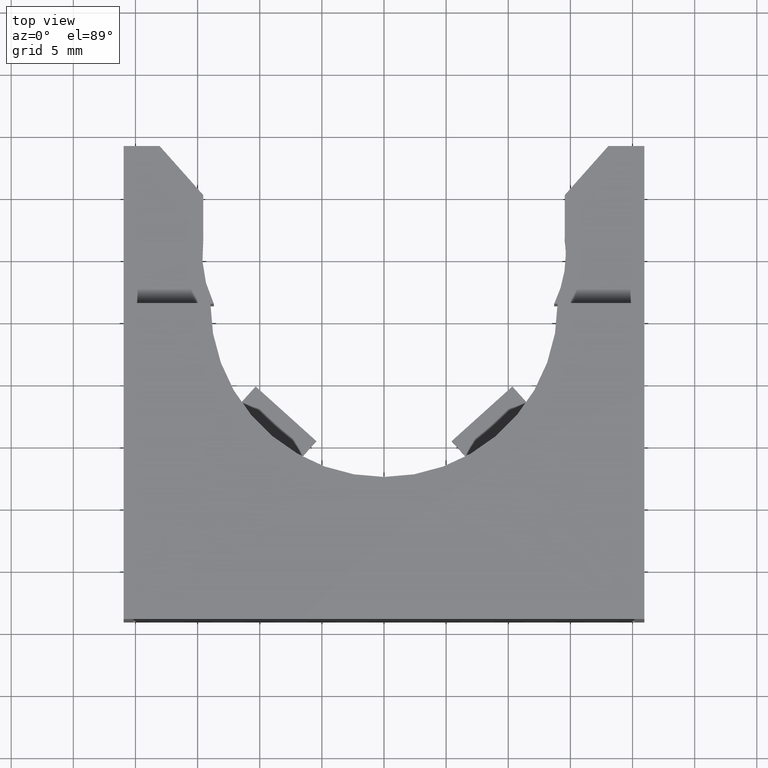
[diagram: clean part render]
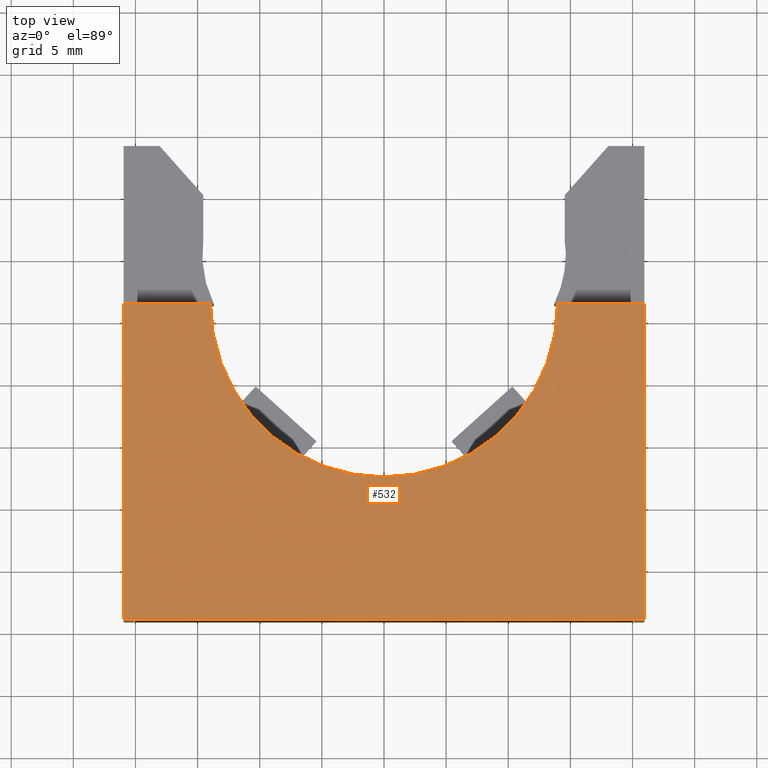
[diagram: same view with one face highlighted and labeled with its STEP entity id]
A machine part, top view. The second image highlights one B-rep face of the part: STEP entity #532.
In plain terms, the highlighted planar face has unit normal (-0, 0, 1).
Its self-contained STEP definition (entity closure, byte-faithful):
#208 = VERTEX_POINT ( 'NONE', #891 ) ;
#210 = EDGE_CURVE ( 'NONE', #211, #208, #890, .T. ) ;
#211 = VERTEX_POINT ( 'NONE', #886 ) ;
#459 = EDGE_CURVE ( 'NONE', #460, #461, #1232, .T. ) ;
#460 = VERTEX_POINT ( 'NONE', #1227 ) ;
#461 = VERTEX_POINT ( 'NONE', #1226 ) ;
#532 = ADVANCED_FACE ( 'NONE', ( #1457 ), #1500, .T. ) ;
#542 = VERTEX_POINT ( 'NONE', #1551 ) ;
#556 = EDGE_CURVE ( 'NONE', #568, #542, #1463, .T. ) ;
#568 = VERTEX_POINT ( 'NONE', #1509 ) ;
#575 = EDGE_LOOP ( 'NONE', ( #576, #578, #579, #580, #588, #590 ) ) ;
#576 = ORIENTED_EDGE ( 'NONE', *, *, #577, .F. ) ;
#577 = EDGE_CURVE ( 'NONE', #211, #460, #1443, .T. ) ;
#578 = ORIENTED_EDGE ( 'NONE', *, *, #210, .T. ) ;
#579 = ORIENTED_EDGE ( 'NONE', *, *, #620, .T. ) ;
#580 = ORIENTED_EDGE ( 'NONE', *, *, #556, .T. ) ;
#588 = ORIENTED_EDGE ( 'NONE', *, *, #589, .F. ) ;
#589 = EDGE_CURVE ( 'NONE', #461, #542, #1580, .T. ) ;
#590 = ORIENTED_EDGE ( 'NONE', *, *, #459, .F. ) ;
#620 = EDGE_CURVE ( 'NONE', #208, #568, #1486, .T. ) ;
#886 = CARTESIAN_POINT ( 'NONE',  ( -0.8250000000000004000, 0.2500000000000000000, 0.6300000000000000000 ) ) ;
#887 = DIRECTION ( 'NONE',  ( 1.821231995776175700E-016, -1.000000000000000000, 0.0000000000000000000 ) ) ;
#888 = VECTOR ( 'NONE', #887, 39.37007874015748100 ) ;
#889 = CARTESIAN_POINT ( 'NONE',  ( -0.8250000000000004000, 0.7499999999999998900, 0.6300000000000000000 ) ) ;
#890 = LINE ( 'NONE', #889, #888 ) ;
#891 = CARTESIAN_POINT ( 'NONE',  ( -0.8250000000000000700, -0.7500000000000002200, 0.6300000000000000000 ) ) ;
#1226 = CARTESIAN_POINT ( 'NONE',  ( 0.5500000000000001600, 0.2500000000000000000, 0.6300000000000000000 ) ) ;
#1227 = CARTESIAN_POINT ( 'NONE',  ( -0.5500000000000000400, 0.2500000000000000000, 0.6300000000000000000 ) ) ;
#1228 = DIRECTION ( 'NONE',  ( 1.000000000000000000, 0.0000000000000000000, 0.0000000000000000000 ) ) ;
#1229 = DIRECTION ( 'NONE',  ( 0.0000000000000000000, 0.0000000000000000000, 1.000000000000000000 ) ) ;
#1230 = CARTESIAN_POINT ( 'NONE',  ( 0.0000000000000000000, 0.2500000000000000600, 0.6300000000000000000 ) ) ;
#1231 = AXIS2_PLACEMENT_3D ( 'NONE', #1230, #1229, #1228 ) ;
#1232 = CIRCLE ( 'NONE', #1231, 0.5500000000000000400 ) ;
#1420 = DIRECTION ( 'NONE',  ( 1.000000000000000000, -0.0000000000000000000, -0.0000000000000000000 ) ) ;
#1441 = VECTOR ( 'NONE', #1420, 39.37007874015748100 ) ;
#1442 = CARTESIAN_POINT ( 'NONE',  ( -0.8250000000000004000, 0.2500000000000000000, 0.6300000000000000000 ) ) ;
#1443 = LINE ( 'NONE', #1442, #1441 ) ;
#1457 = FACE_OUTER_BOUND ( 'NONE', #575, .T. ) ;
#1460 = DIRECTION ( 'NONE',  ( -9.106159978880878600E-017, 1.000000000000000000, -0.0000000000000000000 ) ) ;
#1461 = VECTOR ( 'NONE', #1460, 39.37007874015748100 ) ;
#1462 = CARTESIAN_POINT ( 'NONE',  ( 0.8249999999999996200, 0.7499999999999998900, 0.6300000000000000000 ) ) ;
#1463 = LINE ( 'NONE', #1462, #1461 ) ;
#1483 = DIRECTION ( 'NONE',  ( 1.000000000000000000, 0.0000000000000000000, 0.0000000000000000000 ) ) ;
#1484 = VECTOR ( 'NONE', #1483, 39.37007874015748100 ) ;
#1485 = CARTESIAN_POINT ( 'NONE',  ( -0.8250000000000000700, -0.7500000000000002200, 0.6300000000000000000 ) ) ;
#1486 = LINE ( 'NONE', #1485, #1484 ) ;
#1489 = DIRECTION ( 'NONE',  ( 1.000000000000000000, 0.0000000000000000000, 0.0000000000000000000 ) ) ;
#1490 = DIRECTION ( 'NONE',  ( -0.0000000000000000000, 0.0000000000000000000, 1.000000000000000000 ) ) ;
#1491 = CARTESIAN_POINT ( 'NONE',  ( -0.8250000000000000700, -0.7500000000000002200, 0.6300000000000000000 ) ) ;
#1499 = AXIS2_PLACEMENT_3D ( 'NONE', #1491, #1490, #1489 ) ;
#1500 = PLANE ( 'NONE',  #1499 ) ;
#1509 = CARTESIAN_POINT ( 'NONE',  ( 0.8249999999999998400, -0.7500000000000002200, 0.6300000000000000000 ) ) ;
#1551 = CARTESIAN_POINT ( 'NONE',  ( 0.8249999999999998400, 0.2500000000000000000, 0.6300000000000000000 ) ) ;
#1577 = DIRECTION ( 'NONE',  ( 1.000000000000000000, -0.0000000000000000000, -0.0000000000000000000 ) ) ;
#1578 = VECTOR ( 'NONE', #1577, 39.37007874015748100 ) ;
#1579 = CARTESIAN_POINT ( 'NONE',  ( -0.8250000000000004000, 0.2500000000000000000, 0.6300000000000000000 ) ) ;
#1580 = LINE ( 'NONE', #1579, #1578 ) ;